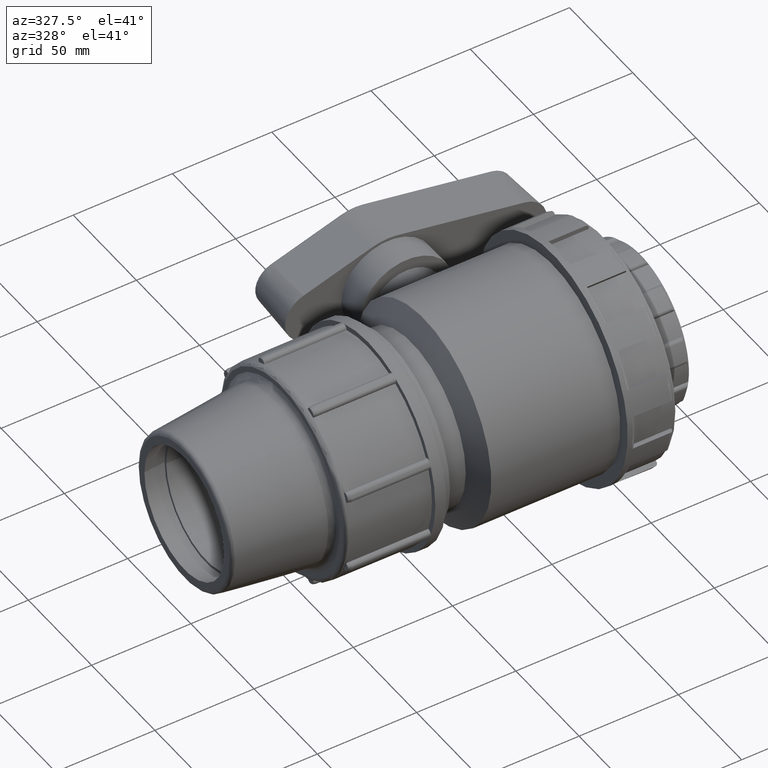
[diagram: clean part render]
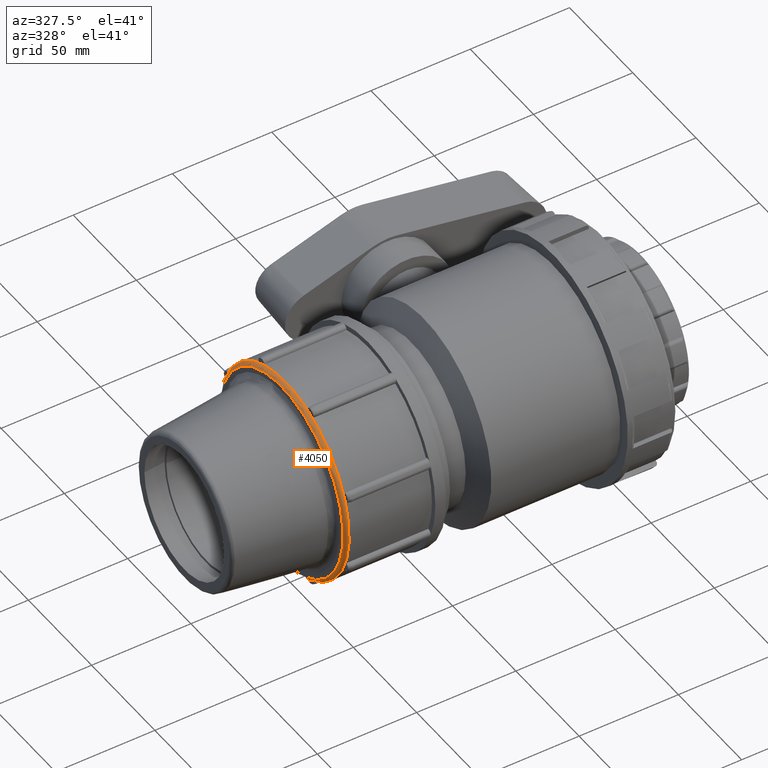
[diagram: same view with one face highlighted and labeled with its STEP entity id]
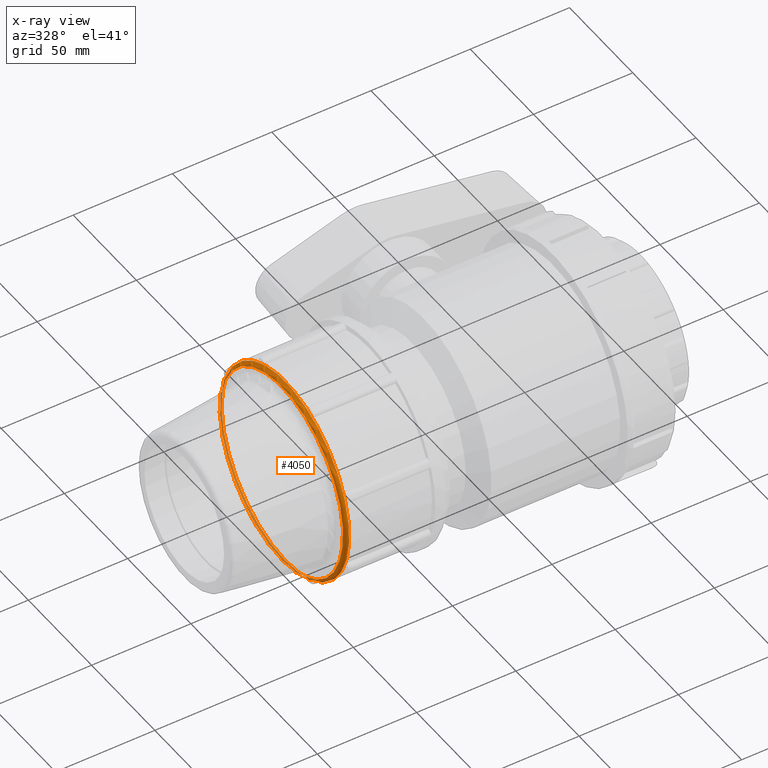
[diagram: x-ray of the same camera — body ghosted, the highlighted face saturated]
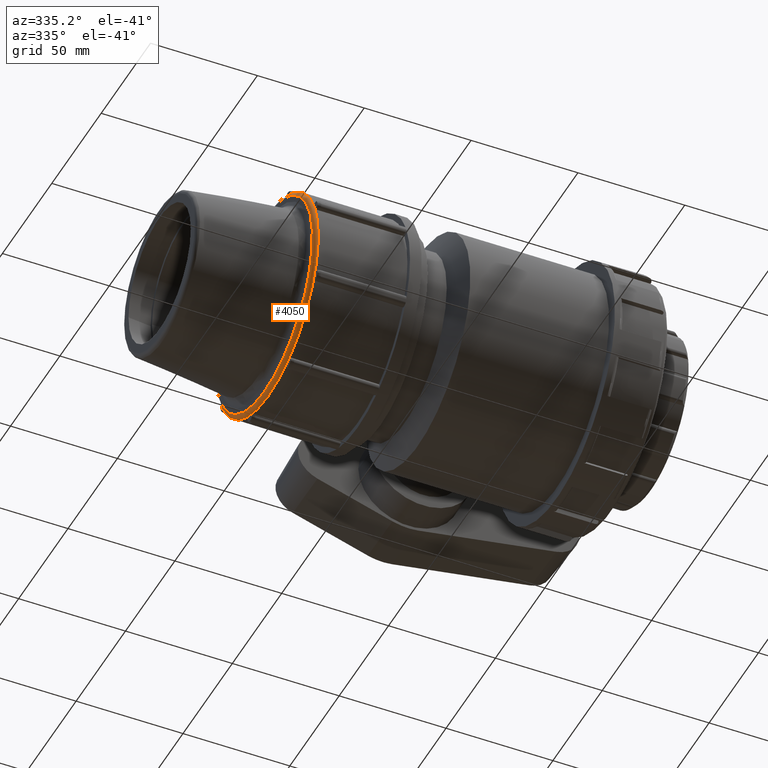
[diagram: same view with one face highlighted and labeled with its STEP entity id]
A machine part, auxiliary view. The second image highlights one B-rep face of the part: STEP entity #4050.
The next image is the same camera in x-ray: the body ghosted, the highlighted face saturated — about 20% of this face is hidden behind the body in this view.
A second angle (auxiliary view) of the same face is appended — the face is thin or edge-on in the first view.
In plain terms, the highlighted toroidal blend (fillet) surface has major radius 48.555 mm and minor (blend) radius 1.89 mm.
Its self-contained STEP definition (entity closure, byte-faithful):
#38=FACE_BOUND('',#683,.T.);
#77=TOROIDAL_SURFACE('',#4360,48.555,1.89);
#430=FACE_OUTER_BOUND('',#682,.T.);
#682=EDGE_LOOP('',(#3013));
#683=EDGE_LOOP('',(#3014));
#1405=CIRCLE('',#4339,50.445);
#1418=CIRCLE('',#4361,48.555);
#1723=VERTEX_POINT('',#6971);
#1741=VERTEX_POINT('',#7102);
#2198=EDGE_CURVE('',#1723,#1723,#1405,.T.);
#2224=EDGE_CURVE('',#1741,#1741,#1418,.T.);
#3013=ORIENTED_EDGE('',*,*,#2198,.T.);
#3014=ORIENTED_EDGE('',*,*,#2224,.T.);
#4050=ADVANCED_FACE('',(#430,#38),#77,.T.);
#4339=AXIS2_PLACEMENT_3D('',#6972,#5008,#5009);
#4360=AXIS2_PLACEMENT_3D('',#7101,#5057,#5058);
#4361=AXIS2_PLACEMENT_3D('',#7103,#5059,#5060);
#5008=DIRECTION('center_axis',(-1.,0.,0.));
#5009=DIRECTION('ref_axis',(0.,0.940721029240063,0.33918128654971));
#5057=DIRECTION('center_axis',(1.,0.,0.));
#5058=DIRECTION('ref_axis',(0.,0.940721029240063,0.33918128654971));
#5059=DIRECTION('center_axis',(1.,0.,0.));
#5060=DIRECTION('ref_axis',(0.,0.940721029240063,0.33918128654971));
#6971=CARTESIAN_POINT('',(-102.393333333333,21.4569235703665,-45.65411762257));
#6972=CARTESIAN_POINT('Origin',(-102.393333333333,0.,0.));
#7101=CARTESIAN_POINT('Origin',(-102.393333333333,0.,0.));
#7102=CARTESIAN_POINT('',(-104.283333333333,-45.6767095747513,-16.4689473684212));
#7103=CARTESIAN_POINT('Origin',(-104.283333333333,0.,0.));